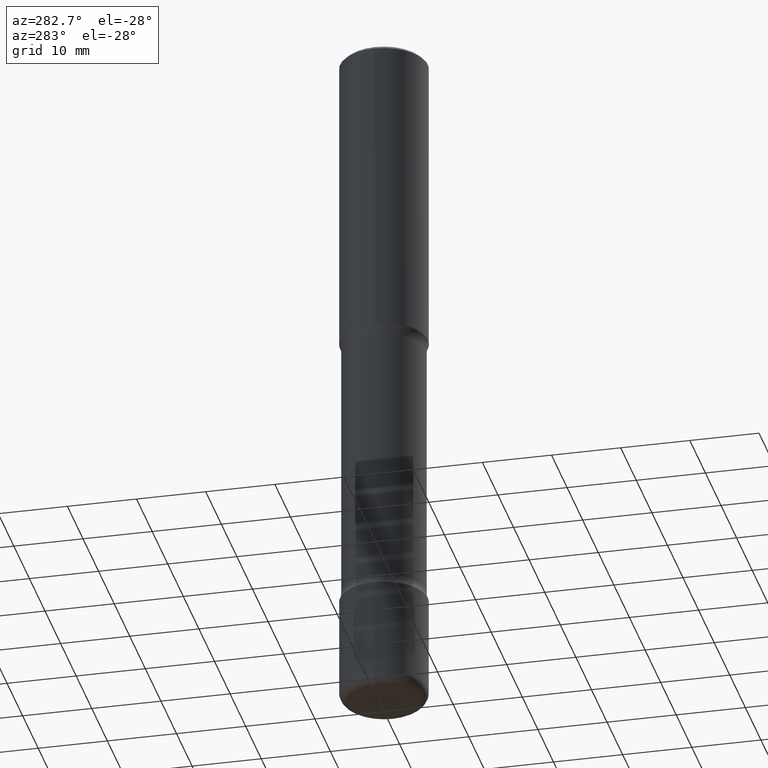
[diagram: clean part render]
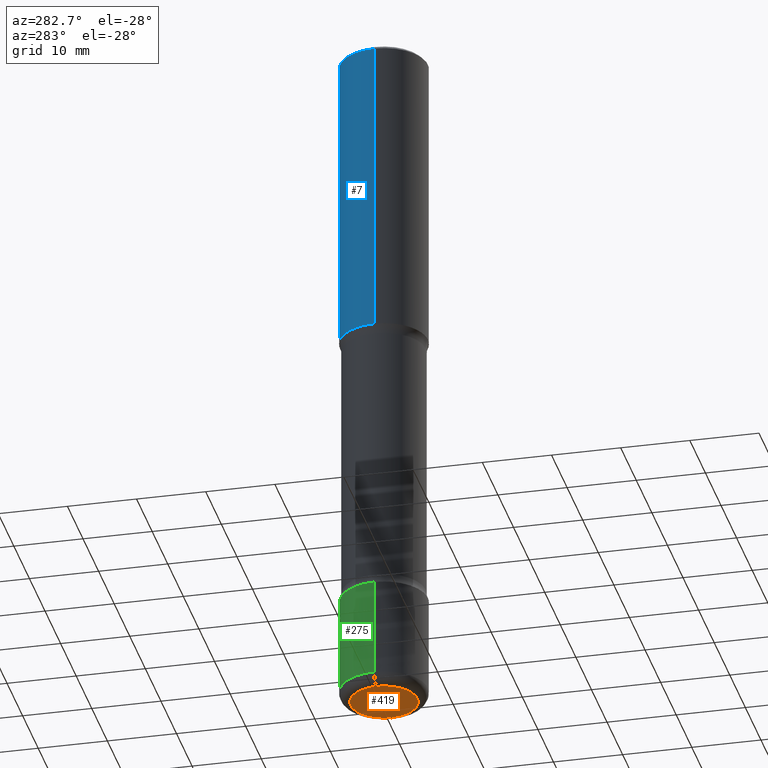
[diagram: same view with three faces highlighted in distinct colors, each labeled with its STEP entity id]
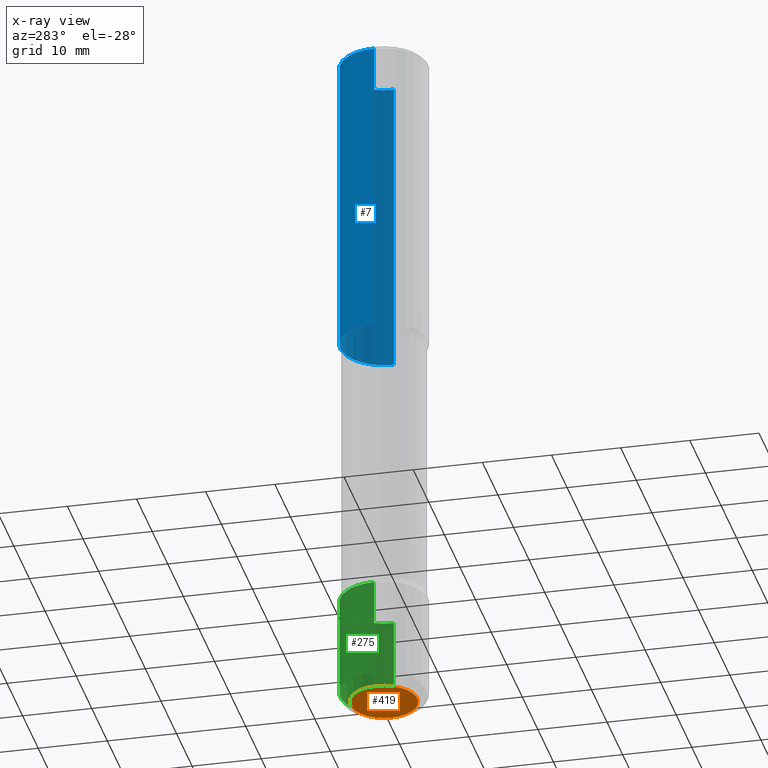
[diagram: x-ray of the same camera — body ghosted, the three highlighted faces saturated]
A machine part, auxiliary view with three faces highlighted in distinct colors.
The next image is the same camera in x-ray (body ghosted, the three faces saturated) — at least one of them is partly hidden behind the body in this view.
Their STEP definitions:

[orange] entity #419 — the highlighted planar face has unit normal (0, -0, -1).
#6 = EDGE_LOOP ( 'NONE', ( #139, #399 ) ) ;
#33 = CARTESIAN_POINT ( 'NONE',  ( 0.1900000000000001132, -1.529268826413297395E-14, -4.000000000000000000 ) ) ;
#63 = CARTESIAN_POINT ( 'NONE',  ( 9.781875224740546387E-29, -1.396592535537258233E-14, -4.000000000000000000 ) ) ;
#74 = CARTESIAN_POINT ( 'NONE',  ( -0.1900000000000001132, -1.229798689653506716E-14, -4.000000000000000000 ) ) ;
#79 = CIRCLE ( 'NONE', #345, 0.1900000000000001132 ) ;
#84 = EDGE_CURVE ( 'NONE', #166, #188, #278, .T. ) ;
#90 = DIRECTION ( 'NONE',  ( 2.438088387897960049E-29, -3.491481338843145188E-15, -1.000000000000000000 ) ) ;
#95 = PLANE ( 'NONE',  #492 ) ;
#135 = DIRECTION ( 'NONE',  ( -2.445468806185136597E-29, 3.491481338843145583E-15, 1.000000000000000000 ) ) ;
#139 = ORIENTED_EDGE ( 'NONE', *, *, #458, .F. ) ;
#147 = DIRECTION ( 'NONE',  ( 1.000000000000000000, -6.982962677686267499E-15, 0.000000000000000000 ) ) ;
#166 = VERTEX_POINT ( 'NONE', #74 ) ;
#172 = FACE_OUTER_BOUND ( 'NONE', #6, .T. ) ;
#188 = VERTEX_POINT ( 'NONE', #33 ) ;
#218 = CARTESIAN_POINT ( 'NONE',  ( 9.781875224740546387E-29, -1.396592535537258233E-14, -4.000000000000000000 ) ) ;
#258 = AXIS2_PLACEMENT_3D ( 'NONE', #63, #543, #147 ) ;
#266 = DIRECTION ( 'NONE',  ( 1.000000000000000000, -6.982962677686267499E-15, 0.000000000000000000 ) ) ;
#278 = CIRCLE ( 'NONE', #258, 0.1900000000000001132 ) ;
#345 = AXIS2_PLACEMENT_3D ( 'NONE', #350, #135, #266 ) ;
#350 = CARTESIAN_POINT ( 'NONE',  ( 9.781875224740546387E-29, -1.396592535537258233E-14, -4.000000000000000000 ) ) ;
#399 = ORIENTED_EDGE ( 'NONE', *, *, #84, .F. ) ;
#419 = ADVANCED_FACE ( 'NONE', ( #172 ), #95, .T. ) ;
#438 = DIRECTION ( 'NONE',  ( -1.000000000000000000, 6.982962677686265922E-15, -4.876176775795935793E-29 ) ) ;
#458 = EDGE_CURVE ( 'NONE', #188, #166, #79, .T. ) ;
#492 = AXIS2_PLACEMENT_3D ( 'NONE', #218, #90, #438 ) ;
#543 = DIRECTION ( 'NONE',  ( -2.445468806185136597E-29, 3.491481338843145583E-15, 1.000000000000000000 ) ) ;

[blue] entity #7 — the highlighted cylindrical surface (partial cylindrical patch) has radius 6.35 mm, axis along (-0, 0, 1).
#2 = EDGE_CURVE ( 'NONE', #375, #132, #36, .T. ) ;
#7 = ADVANCED_FACE ( 'NONE', ( #347 ), #184, .T. ) ;
#20 = DIRECTION ( 'NONE',  ( 1.000000000000000000, -6.982962677686266711E-15, 4.876176775795935793E-29 ) ) ;
#36 = CIRCLE ( 'NONE', #124, 0.2499999999999996114 ) ;
#39 = VERTEX_POINT ( 'NONE', #61 ) ;
#60 = VERTEX_POINT ( 'NONE', #498 ) ;
#61 = CARTESIAN_POINT ( 'NONE',  ( 0.2500000000000000000, -7.855833012397068982E-15, -1.749999999999999334 ) ) ;
#103 = VECTOR ( 'NONE', #333, 39.37007874015748143 ) ;
#115 = DIRECTION ( 'NONE',  ( -2.445468806185136877E-29, 3.491481338843145188E-15, 1.000000000000000000 ) ) ;
#124 = AXIS2_PLACEMENT_3D ( 'NONE', #440, #238, #551 ) ;
#132 = VERTEX_POINT ( 'NONE', #502 ) ;
#149 = VECTOR ( 'NONE', #115, 39.37007874015748143 ) ;
#182 = EDGE_CURVE ( 'NONE', #39, #375, #511, .T. ) ;
#184 = CYLINDRICAL_SURFACE ( 'NONE', #467, 0.2499999999999998057 ) ;
#221 = DIRECTION ( 'NONE',  ( 1.000000000000000000, -6.982962677686266711E-15, 0.000000000000000000 ) ) ;
#233 = EDGE_LOOP ( 'NONE', ( #483, #490, #297, #517 ) ) ;
#238 = DIRECTION ( 'NONE',  ( -2.445468806185136597E-29, 3.491481338843145583E-15, 1.000000000000000000 ) ) ;
#260 = AXIS2_PLACEMENT_3D ( 'NONE', #346, #314, #221 ) ;
#271 = CIRCLE ( 'NONE', #260, 0.2500000000000000000 ) ;
#297 = ORIENTED_EDGE ( 'NONE', *, *, #2, .F. ) ;
#314 = DIRECTION ( 'NONE',  ( -2.445468806185136597E-29, 3.491481338843145583E-15, 1.000000000000000000 ) ) ;
#323 = DIRECTION ( 'NONE',  ( -2.445468806185136597E-29, 3.491481338843145583E-15, 1.000000000000000000 ) ) ;
#332 = CARTESIAN_POINT ( 'NONE',  ( -0.2499999999999998057, 1.776356839400249084E-15, -1.229733772563725465E-29 ) ) ;
#333 = DIRECTION ( 'NONE',  ( -2.445468806185136877E-29, 3.491481338843145188E-15, 1.000000000000000000 ) ) ;
#334 = EDGE_CURVE ( 'NONE', #60, #132, #549, .T. ) ;
#346 = CARTESIAN_POINT ( 'NONE',  ( 4.279570410823987923E-29, -6.110092342975502304E-15, -1.749999999999999334 ) ) ;
#347 = FACE_OUTER_BOUND ( 'NONE', #233, .T. ) ;
#375 = VERTEX_POINT ( 'NONE', #509 ) ;
#440 = CARTESIAN_POINT ( 'NONE',  ( 4.890937612370273159E-31, -6.982962677686291609E-17, -0.02000000000000000042 ) ) ;
#444 = CARTESIAN_POINT ( 'NONE',  ( 0.000000000000000000, 0.000000000000000000, 0.000000000000000000 ) ) ;
#452 = EDGE_CURVE ( 'NONE', #39, #60, #271, .T. ) ;
#467 = AXIS2_PLACEMENT_3D ( 'NONE', #444, #323, #20 ) ;
#483 = ORIENTED_EDGE ( 'NONE', *, *, #452, .T. ) ;
#490 = ORIENTED_EDGE ( 'NONE', *, *, #334, .T. ) ;
#498 = CARTESIAN_POINT ( 'NONE',  ( -0.2500000000000000555, -1.313604145475929576E-15, -1.749999999999999334 ) ) ;
#502 = CARTESIAN_POINT ( 'NONE',  ( -0.2499999999999996114, 1.675911042644701210E-15, -0.02000000000000000042 ) ) ;
#504 = CARTESIAN_POINT ( 'NONE',  ( 0.2499999999999998057, -1.745740669421565297E-15, 1.219044193948982967E-29 ) ) ;
#509 = CARTESIAN_POINT ( 'NONE',  ( 0.2499999999999996114, -1.784954126219743033E-15, -0.02000000000000000042 ) ) ;
#511 = LINE ( 'NONE', #504, #103 ) ;
#517 = ORIENTED_EDGE ( 'NONE', *, *, #182, .F. ) ;
#549 = LINE ( 'NONE', #332, #149 ) ;
#551 = DIRECTION ( 'NONE',  ( 1.000000000000000000, -6.982962677686267499E-15, 0.000000000000000000 ) ) ;

[green] entity #275 — the highlighted cylindrical surface (partial cylindrical patch) has radius 6.35 mm, axis along (-0, 0, 1).
#71 = FACE_OUTER_BOUND ( 'NONE', #325, .T. ) ;
#83 = CARTESIAN_POINT ( 'NONE',  ( 0.2500000000000000555, -1.745740669421567269E-15, 1.219044193948984228E-29 ) ) ;
#88 = ORIENTED_EDGE ( 'NONE', *, *, #143, .F. ) ;
#131 = CARTESIAN_POINT ( 'NONE',  ( 0.2500000000000000000, -1.352949018801718119E-14, -3.375000000000000000 ) ) ;
#136 = CIRCLE ( 'NONE', #546, 0.2500000000000000000 ) ;
#143 = EDGE_CURVE ( 'NONE', #532, #536, #136, .T. ) ;
#155 = CARTESIAN_POINT ( 'NONE',  ( -0.2500000000000001110, -1.198007963564174355E-14, -3.939999999999999947 ) ) ;
#157 = CYLINDRICAL_SURFACE ( 'NONE', #212, 0.2500000000000000555 ) ;
#171 = ORIENTED_EDGE ( 'NONE', *, *, #175, .T. ) ;
#175 = EDGE_CURVE ( 'NONE', #437, #217, #299, .T. ) ;
#178 = LINE ( 'NONE', #307, #322 ) ;
#199 = CARTESIAN_POINT ( 'NONE',  ( 0.000000000000000000, 0.000000000000000000, 0.000000000000000000 ) ) ;
#200 = DIRECTION ( 'NONE',  ( 1.000000000000000000, -6.982962677686267499E-15, 0.000000000000000000 ) ) ;
#212 = AXIS2_PLACEMENT_3D ( 'NONE', #199, #287, #552 ) ;
#217 = VERTEX_POINT ( 'NONE', #155 ) ;
#244 = DIRECTION ( 'NONE',  ( -2.445468806185136597E-29, 3.491481338843145583E-15, 1.000000000000000000 ) ) ;
#275 = ADVANCED_FACE ( 'NONE', ( #71 ), #157, .T. ) ;
#276 = ORIENTED_EDGE ( 'NONE', *, *, #542, .F. ) ;
#287 = DIRECTION ( 'NONE',  ( -2.445468806185136597E-29, 3.491481338843145583E-15, 1.000000000000000000 ) ) ;
#292 = DIRECTION ( 'NONE',  ( 1.000000000000000000, -6.982962677686262766E-15, 0.000000000000000000 ) ) ;
#299 = CIRCLE ( 'NONE', #408, 0.2500000000000001110 ) ;
#307 = CARTESIAN_POINT ( 'NONE',  ( -0.2500000000000000555, 1.776356839400250859E-15, -1.229733772563726866E-29 ) ) ;
#322 = VECTOR ( 'NONE', #394, 39.37007874015748143 ) ;
#325 = EDGE_LOOP ( 'NONE', ( #171, #472, #88, #276 ) ) ;
#339 = CARTESIAN_POINT ( 'NONE',  ( 9.635147096369438236E-29, -1.375643647504199401E-14, -3.939999999999999947 ) ) ;
#353 = DIRECTION ( 'NONE',  ( -2.445468806185136877E-29, 3.491481338843145188E-15, 1.000000000000000000 ) ) ;
#380 = VECTOR ( 'NONE', #353, 39.37007874015748143 ) ;
#394 = DIRECTION ( 'NONE',  ( -2.445468806185136877E-29, 3.491481338843145188E-15, 1.000000000000000000 ) ) ;
#408 = AXIS2_PLACEMENT_3D ( 'NONE', #339, #244, #200 ) ;
#412 = DIRECTION ( 'NONE',  ( -2.445468806185136597E-29, 3.491481338843145583E-15, 1.000000000000000000 ) ) ;
#413 = CARTESIAN_POINT ( 'NONE',  ( 8.253457220874836014E-29, -1.178374951859561452E-14, -3.375000000000000000 ) ) ;
#437 = VERTEX_POINT ( 'NONE', #475 ) ;
#470 = CARTESIAN_POINT ( 'NONE',  ( -0.2500000000000000000, -1.099373615741855222E-14, -3.375000000000000000 ) ) ;
#472 = ORIENTED_EDGE ( 'NONE', *, *, #513, .T. ) ;
#475 = CARTESIAN_POINT ( 'NONE',  ( 0.2500000000000001110, -1.550217714446356069E-14, -3.939999999999999947 ) ) ;
#477 = LINE ( 'NONE', #83, #380 ) ;
#513 = EDGE_CURVE ( 'NONE', #217, #536, #178, .T. ) ;
#532 = VERTEX_POINT ( 'NONE', #131 ) ;
#536 = VERTEX_POINT ( 'NONE', #470 ) ;
#542 = EDGE_CURVE ( 'NONE', #437, #532, #477, .T. ) ;
#546 = AXIS2_PLACEMENT_3D ( 'NONE', #413, #412, #292 ) ;
#552 = DIRECTION ( 'NONE',  ( 1.000000000000000000, -6.982962677686267499E-15, 4.876176775795935793E-29 ) ) ;